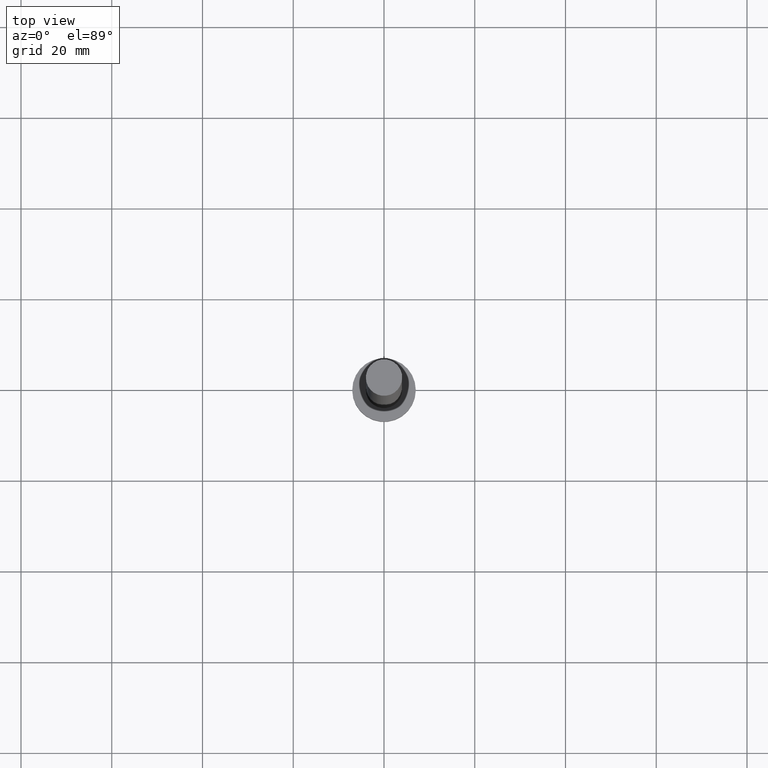
[diagram: clean part render]
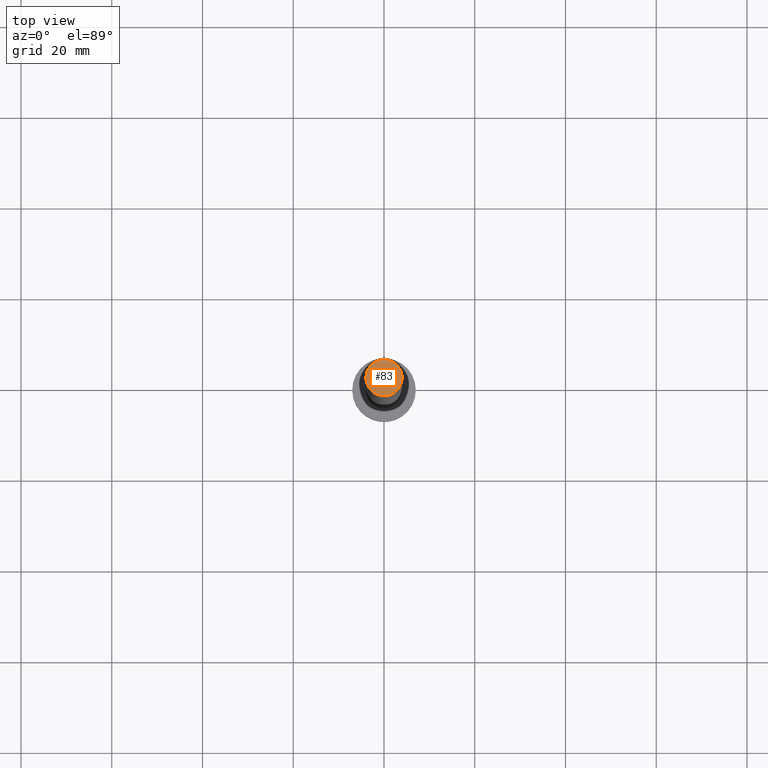
[diagram: same view with one face highlighted and labeled with its STEP entity id]
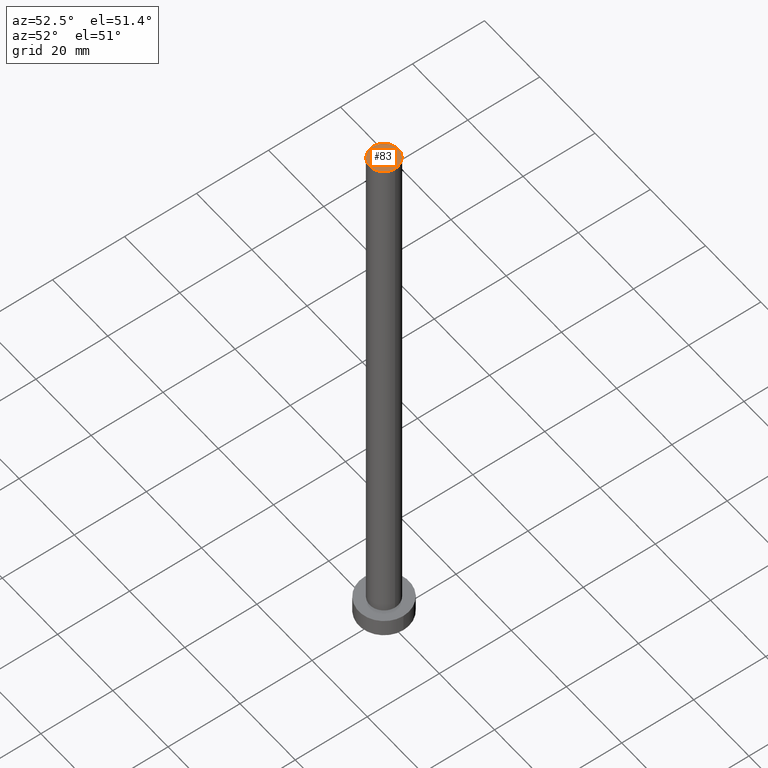
[diagram: same view with one face highlighted and labeled with its STEP entity id]
A machine part, top view. The second image highlights one B-rep face of the part: STEP entity #83.
A second angle (auxiliary view) of the same face is appended — the face is thin or edge-on in the first view.
In plain terms, the highlighted planar face has unit normal (0, 0, 1).
Its self-contained STEP definition (entity closure, byte-faithful):
#30 = DIRECTION ( 'NONE',  ( 1.000000000000000000, 0.000000000000000000, 0.000000000000000000 ) ) ;
#46 = DIRECTION ( 'NONE',  ( 1.000000000000000000, 0.000000000000000000, 0.000000000000000000 ) ) ;
#57 = CIRCLE ( 'NONE', #212, 4.000000000000000000 ) ;
#64 = VERTEX_POINT ( 'NONE', #163 ) ;
#71 = ORIENTED_EDGE ( 'NONE', *, *, #178, .T. ) ;
#73 = DIRECTION ( 'NONE',  ( 1.000000000000000000, 0.000000000000000000, -0.000000000000000000 ) ) ;
#75 = FACE_OUTER_BOUND ( 'NONE', #126, .T. ) ;
#83 = ADVANCED_FACE ( 'NONE', ( #75 ), #245, .T. ) ;
#93 = CARTESIAN_POINT ( 'NONE',  ( 0.000000000000000000, 0.000000000000000000, 160.0000000000000000 ) ) ;
#97 = DIRECTION ( 'NONE',  ( 0.000000000000000000, 0.000000000000000000, 1.000000000000000000 ) ) ;
#101 = EDGE_CURVE ( 'NONE', #64, #182, #228, .T. ) ;
#112 = DIRECTION ( 'NONE',  ( 0.000000000000000000, 0.000000000000000000, 1.000000000000000000 ) ) ;
#120 = AXIS2_PLACEMENT_3D ( 'NONE', #93, #97, #73 ) ;
#126 = EDGE_LOOP ( 'NONE', ( #185, #71 ) ) ;
#149 = CARTESIAN_POINT ( 'NONE',  ( 0.000000000000000000, 0.000000000000000000, 160.0000000000000000 ) ) ;
#152 = CARTESIAN_POINT ( 'NONE',  ( 4.000000000000000000, 4.898587196589412829E-16, 160.0000000000000000 ) ) ;
#163 = CARTESIAN_POINT ( 'NONE',  ( -4.000000000000000000, 0.000000000000000000, 160.0000000000000000 ) ) ;
#178 = EDGE_CURVE ( 'NONE', #182, #64, #57, .T. ) ;
#182 = VERTEX_POINT ( 'NONE', #152 ) ;
#185 = ORIENTED_EDGE ( 'NONE', *, *, #101, .T. ) ;
#207 = DIRECTION ( 'NONE',  ( 0.000000000000000000, 0.000000000000000000, 1.000000000000000000 ) ) ;
#211 = CARTESIAN_POINT ( 'NONE',  ( 0.000000000000000000, 0.000000000000000000, 160.0000000000000000 ) ) ;
#212 = AXIS2_PLACEMENT_3D ( 'NONE', #211, #112, #46 ) ;
#215 = AXIS2_PLACEMENT_3D ( 'NONE', #149, #207, #30 ) ;
#228 = CIRCLE ( 'NONE', #215, 4.000000000000000000 ) ;
#245 = PLANE ( 'NONE',  #120 ) ;